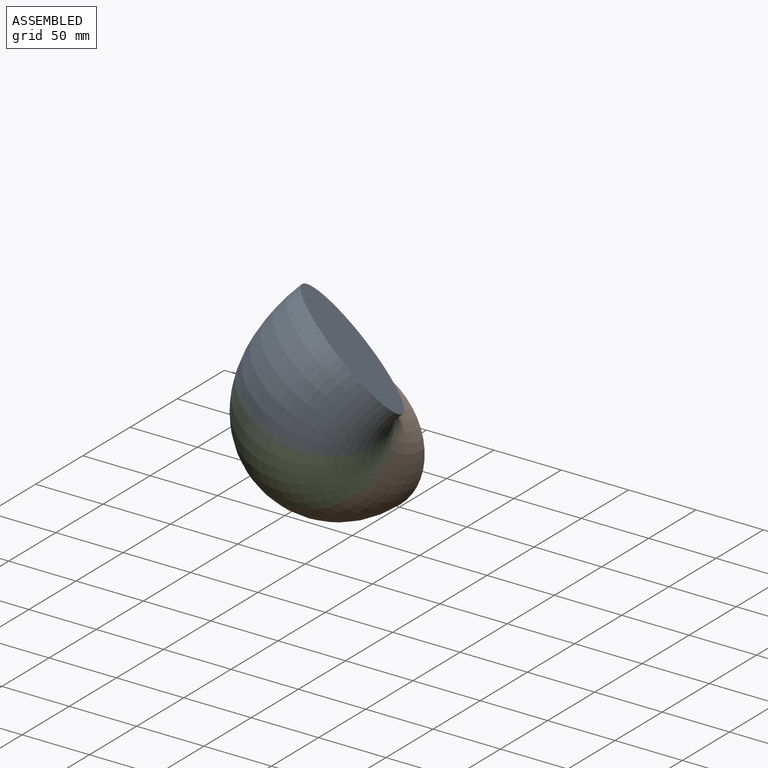
[diagram: assembled view]
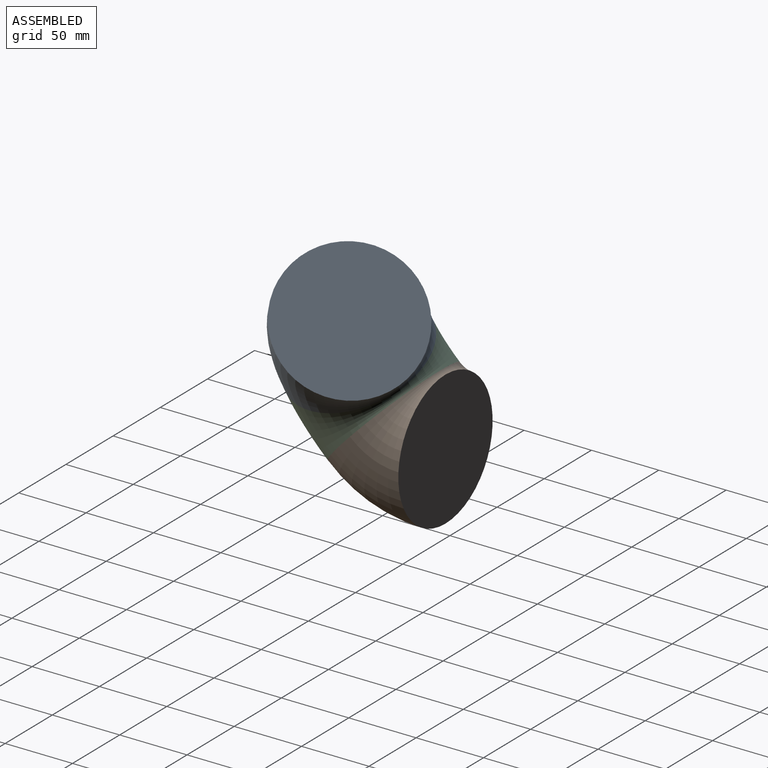
[diagram: assembled view, second angle]
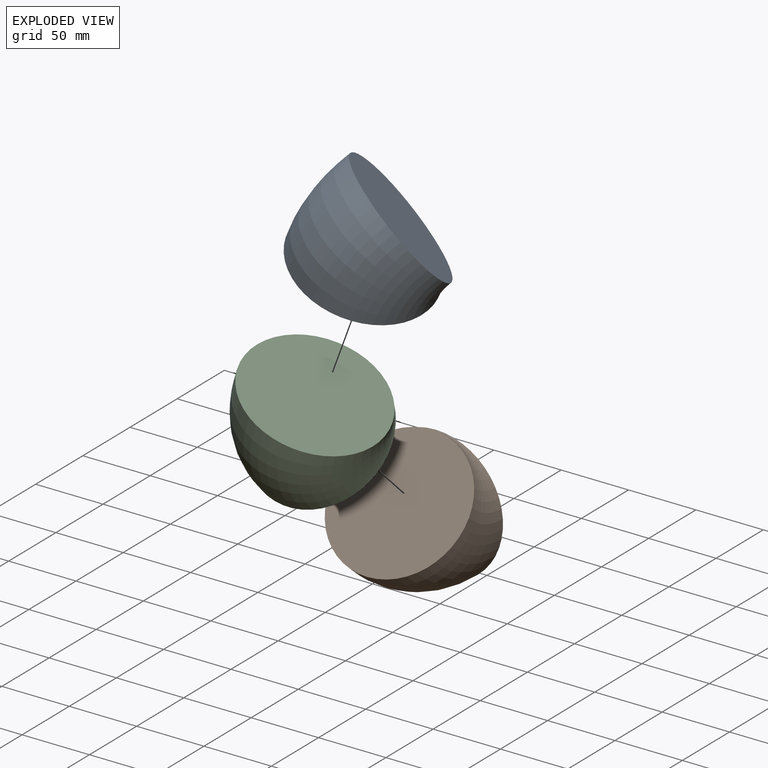
[diagram: exploded view]
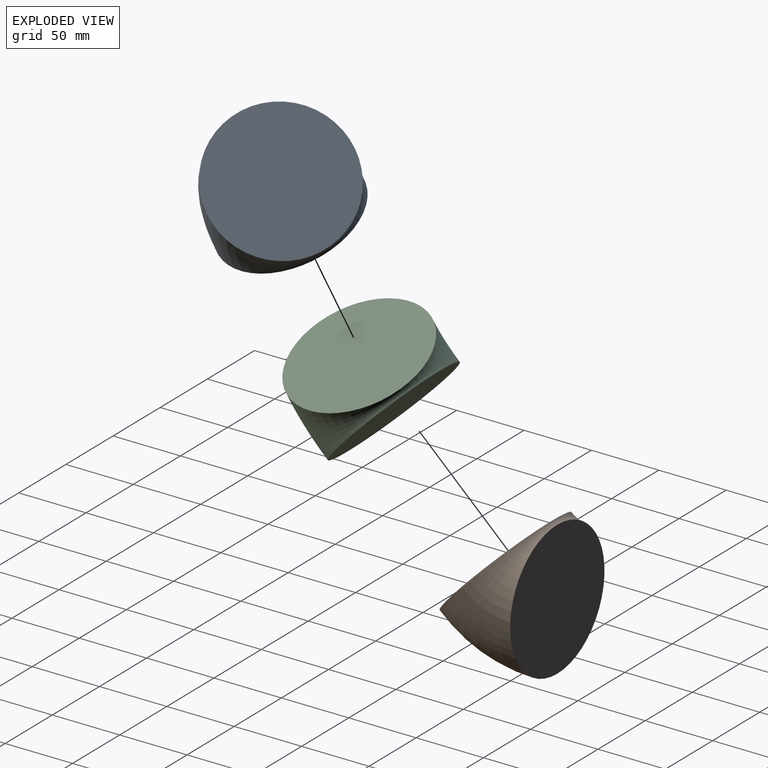
[diagram: exploded view, second angle]
ASSEMBLY  parts=3 mates=2
PART A: 3 faces, bbox 100x78.7x110.3 mm
  f0: plane 100x100mm, normal (0,-1,0), area 7854mm2, adj f2
  f1: plane 100x72.65mm, normal (0,0.73,-0.69), area 7854mm2, adj f2
  f2: torus R=55.8mm, axis (-1,0,0), area 13280.7mm2, adj f0,f1
PART B: same geometry as A
PART C: same geometry as A
PLACE A rot(axis=(0.91,0,-0.41),98.4deg) t=(-209.47,81.16,-100.77)mm
PLACE B rot(axis=(0,-0.93,0.37),180deg) t=(-218.44,100.54,-136.09)mm
PLACE C rot(axis=(0,-0.73,0.69),144deg) t=(-209.47,81.16,-100.77)mm
MATE revolute C.f1 <-> B.f0  axis (0,0.73,-0.69) through (-218.44,100.54,-136.09)mm
MATE revolute A.f0 <-> C.f0  axis (-0.4,0.15,-0.9) through (-209.47,81.16,-100.77)mm
